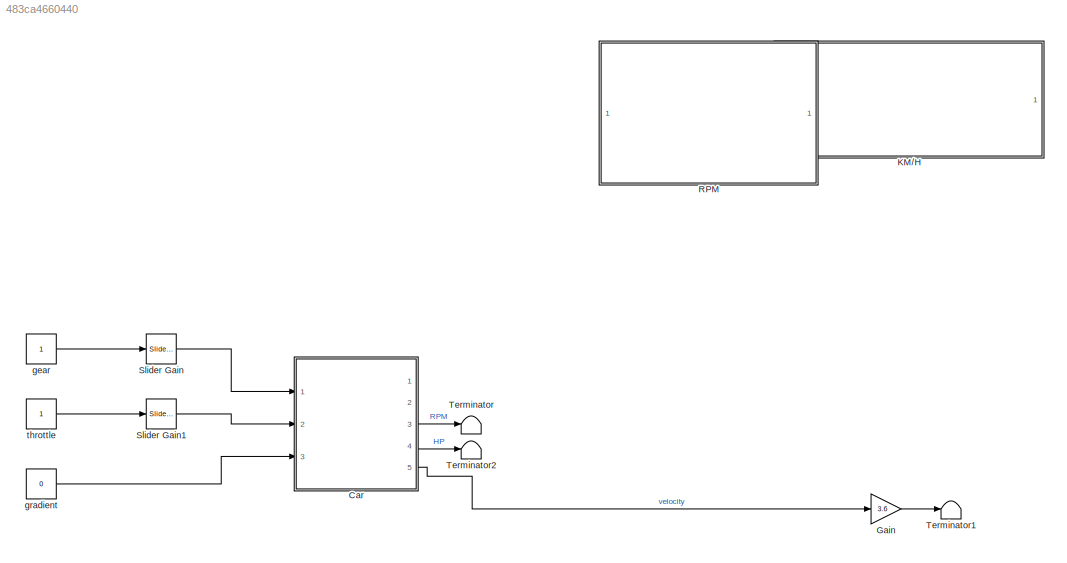
MODEL slx_483ca4660440
KIND model
CONFIG AbsTol = auto
CONFIG EnableMultiTasking = on
CONFIG FixedStep = 0.01
CONFIG MaxStep = auto
CONFIG MinStep = auto
CONFIG RelTol = 1e-3
CONFIG SampleTimeConstraint = Unconstrained
CONFIG Solver = ode3
CONFIG SolverName = ode3
CONFIG StartTime = 0.0
CONFIG StopTime = inf
WORKSPACE source: MAT-file member
WORKSPACE MCOS: class17 (value not decoded)
WORKSPACE MCOS: class17 (value not decoded)
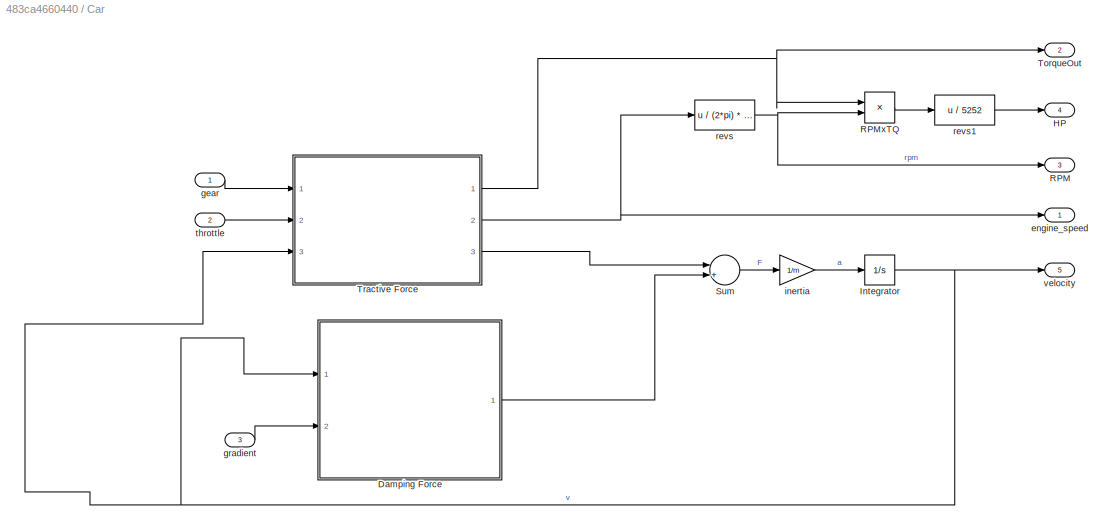
BLOCK [SubSystem] Car
  Ports = [3, 5]
  RequestExecContextInheritance = off
  Variant = off
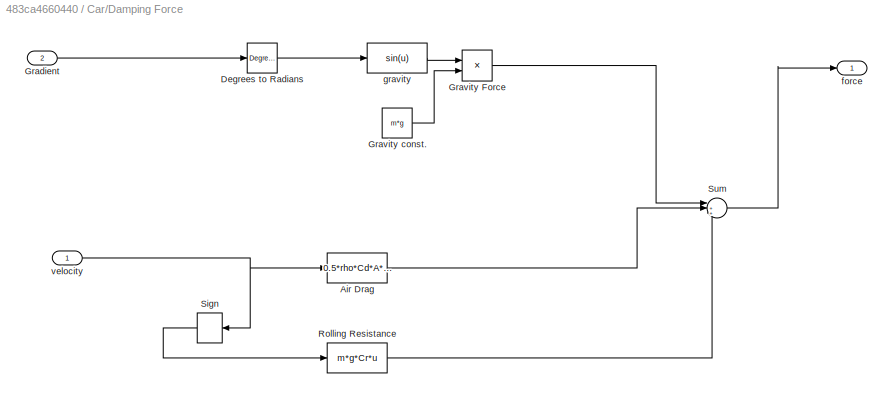
BLOCK [SubSystem] Car/Damping Force
  Ports = [2, 1]
  RequestExecContextInheritance = off
  Variant = off
BLOCK [Fcn] Car/Damping Force/Air Drag
  Expr = 0.5*rho*Cd*A*(u^2)
BLOCK [Reference] Car/Damping Force/Degrees to Radians  REF=simulink_extras/Transformations/Degrees to
Radians
  Ports = [1, 1]
  SourceBlock = simulink_extras/Transformations/Degrees to\nRadians
  SourceProductBaseCode = SL
  SourceProductName = Simulink
  SourceType = DegreesToRadians
BLOCK [Inport] Car/Damping Force/Gradient
  IconDisplay = Port number
  Port = 2
BLOCK [Product] Car/Damping Force/Gravity Force
  InputSameDT = off
  OutDataTypeStr = Inherit: Inherit via internal rule
  Ports = [2, 1]
  RndMeth = Floor
  SaturateOnIntegerOverflow = off
BLOCK [Constant] Car/Damping Force/Gravity const.
  Value = m*g
BLOCK [Fcn] Car/Damping Force/Rolling Resistance
  Expr = m*g*Cr*u
BLOCK [Signum] Car/Damping Force/Sign
BLOCK [Sum] Car/Damping Force/Sum
  IconShape = round
  InputSameDT = off
  Inputs = |+++
  OutDataTypeStr = Inherit: Inherit via internal rule
  Ports = [3, 1]
  SaturateOnIntegerOverflow = off
BLOCK [Outport] Car/Damping Force/force
  IconDisplay = Port number
BLOCK [Fcn] Car/Damping Force/gravity
  Expr = sin(u)
BLOCK [Inport] Car/Damping Force/velocity
  IconDisplay = Port number
BLOCK [Outport] Car/HP
  IconDisplay = Port number
  Port = 4
BLOCK [Integrator] Car/Integrator
  Ports = [1, 1]
BLOCK [Outport] Car/RPM
  IconDisplay = Port number
  Port = 3
BLOCK [Product] Car/RPMxTQ
  InputSameDT = off
  OutDataTypeStr = Inherit: Inherit via internal rule
  Ports = [2, 1]
  RndMeth = Floor
  SaturateOnIntegerOverflow = off
BLOCK [Sum] Car/Sum
  IconShape = round
  InputSameDT = off
  Inputs = |+-
  OutDataTypeStr = Inherit: Inherit via internal rule
  Ports = [2, 1]
  SaturateOnIntegerOverflow = off
BLOCK [Outport] Car/TorqueOut
  IconDisplay = Port number
  Port = 2
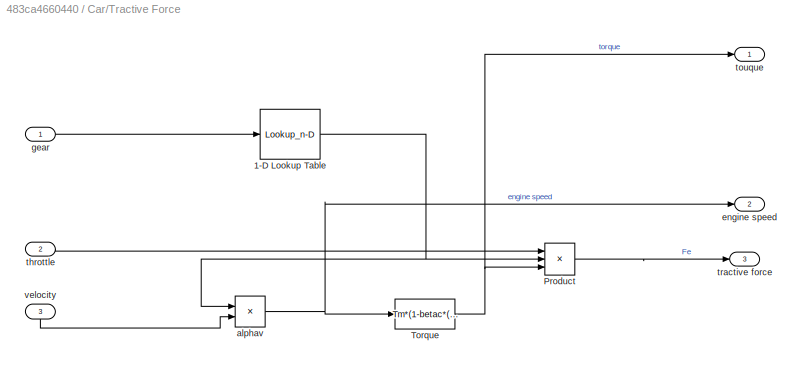
BLOCK [SubSystem] Car/Tractive Force
  Ports = [3, 3]
  RequestExecContextInheritance = off
  Variant = off
BLOCK [Lookup_n-D] Car/Tractive Force/1-D Lookup Table
  BreakpointsForDimension1 = int16([1,2,3,4,5]);
  InternalRulePriority = Speed
  NumberOfTableDimensions = 1
  Ports = [1, 1]
  RndMeth = Simplest
  Table = int16([40,25,16,12,10]);
BLOCK [Product] Car/Tractive Force/Product
  InputSameDT = off
  Inputs = 3
  OutDataTypeStr = Inherit: Inherit via internal rule
  Ports = [3, 1]
  RndMeth = Floor
  SaturateOnIntegerOverflow = off
BLOCK [Fcn] Car/Tractive Force/Torque
  Expr = Tm*(1-betac*((u/omegam)-1)^2)
BLOCK [Product] Car/Tractive Force/alphav
  InputSameDT = off
  OutDataTypeStr = Inherit: Inherit via internal rule
  Ports = [2, 1]
  RndMeth = Floor
  SaturateOnIntegerOverflow = off
BLOCK [Outport] Car/Tractive Force/engine speed
  IconDisplay = Port number
  Port = 2
BLOCK [Inport] Car/Tractive Force/gear
  IconDisplay = Port number
BLOCK [Inport] Car/Tractive Force/throttle
  IconDisplay = Port number
  Port = 2
BLOCK [Outport] Car/Tractive Force/touque
  IconDisplay = Port number
BLOCK [Outport] Car/Tractive Force/tractive force
  IconDisplay = Port number
  Port = 3
BLOCK [Inport] Car/Tractive Force/velocity
  IconDisplay = Port number
  Port = 3
BLOCK [Outport] Car/engine_speed
  IconDisplay = Port number
BLOCK [Inport] Car/gear
  IconDisplay = Port number
BLOCK [Inport] Car/gradient
  IconDisplay = Port number
  Port = 3
BLOCK [Gain] Car/inertia
  Gain = 1/m
  OutDataTypeStr = Inherit: Inherit via internal rule
  ParamDataTypeStr = Inherit: Inherit via internal rule
  SaturateOnIntegerOverflow = off
BLOCK [Fcn] Car/revs
  Expr = u / (2*pi) * 60
BLOCK [Fcn] Car/revs1
  Expr = u / 5252
BLOCK [Inport] Car/throttle
  IconDisplay = Port number
  OutMax = 1
  OutMin = 0
  Port = 2
BLOCK [Outport] Car/velocity
  IconDisplay = Port number
  Port = 5
BLOCK [Gain] Gain
  Gain = 3.6
  OutDataTypeStr = Inherit: Inherit via internal rule
  ParamDataTypeStr = Inherit: Inherit via internal rule
  SaturateOnIntegerOverflow = off
BLOCK [SubSystem] KM//H
  DialogController = hmiCreateDDGDialog
  IsWebBlock = on
  MaskHideContents = on
  Ports = []
  RequestExecContextInheritance = off
  Variant = off
BLOCK [SubSystem] RPM
  DialogController = hmiCreateDDGDialog
  IsWebBlock = on
  MaskHideContents = on
  Ports = []
  RequestExecContextInheritance = off
  Variant = off
BLOCK [Reference] Slider Gain  REF=simulink/Math
Operations/Slider
Gain
  Ports = [1, 1]
  SourceBlock = simulink/Math\nOperations/Slider\nGain
  SourceProductBaseCode = SL
  SourceProductName = Simulink
  SourceType = Slider Gain
BLOCK [Reference] Slider Gain1  REF=simulink/Math
Operations/Slider
Gain
  Ports = [1, 1]
  SourceBlock = simulink/Math\nOperations/Slider\nGain
  SourceProductBaseCode = SL
  SourceProductName = Simulink
  SourceType = Slider Gain
BLOCK [Terminator] Terminator
BLOCK [Terminator] Terminator1
BLOCK [Terminator] Terminator2
BLOCK [Constant] gear
BLOCK [Constant] gradient
  Value = 0
BLOCK [Constant] throttle
LINE Car/Damping Force/Air Drag:1 -> Car/Damping Force/Sum:2
LINE Car/Damping Force/Degrees to Radians:1 -> Car/Damping Force/gravity:1
LINE Car/Damping Force/Gradient:1 -> Car/Damping Force/Degrees to Radians:1
LINE Car/Damping Force/Gravity Force:1 -> Car/Damping Force/Sum:1
LINE Car/Damping Force/Gravity const.:1 -> Car/Damping Force/Gravity Force:2
LINE Car/Damping Force/Rolling Resistance:1 -> Car/Damping Force/Sum:3
LINE Car/Damping Force/Sign:1 -> Car/Damping Force/Rolling Resistance:1
LINE Car/Damping Force/Sum:1 -> Car/Damping Force/force:1
LINE Car/Damping Force/gravity:1 -> Car/Damping Force/Gravity Force:1
NET Car/Damping Force/velocity:1 -> Car/Damping Force/Air Drag:1, Car/Damping Force/Sign:1
LINE Car/Damping Force:1 -> Car/Sum:2
NET Car/Integrator:1 -> Car/Damping Force:1, Car/Tractive Force:3, Car/velocity:1
LINE Car/RPMxTQ:1 -> Car/revs1:1
LINE Car/Sum:1 -> Car/inertia:1
NET Car/Tractive Force/1-D Lookup Table:1 -> Car/Tractive Force/Product:2, Car/Tractive Force/alphav:1
LINE Car/Tractive Force/Product:1 -> Car/Tractive Force/tractive force:1
NET Car/Tractive Force/Torque:1 -> Car/Tractive Force/Product:3, Car/Tractive Force/touque:1
NET Car/Tractive Force/alphav:1 -> Car/Tractive Force/Torque:1, Car/Tractive Force/engine speed:1
LINE Car/Tractive Force/gear:1 -> Car/Tractive Force/1-D Lookup Table:1
LINE Car/Tractive Force/throttle:1 -> Car/Tractive Force/Product:1
LINE Car/Tractive Force/velocity:1 -> Car/Tractive Force/alphav:2
NET Car/Tractive Force:1 -> Car/RPMxTQ:1, Car/TorqueOut:1
NET Car/Tractive Force:2 -> Car/engine_speed:1, Car/revs:1
LINE Car/Tractive Force:3 -> Car/Sum:1
LINE Car/gear:1 -> Car/Tractive Force:1
LINE Car/gradient:1 -> Car/Damping Force:2
LINE Car/inertia:1 -> Car/Integrator:1
LINE Car/revs1:1 -> Car/HP:1
NET Car/revs:1 -> Car/RPM:1, Car/RPMxTQ:2
LINE Car/throttle:1 -> Car/Tractive Force:2
LINE Car:3 -> Terminator:1
LINE Car:4 -> Terminator2:1
LINE Car:5 -> Gain:1
LINE Gain:1 -> Terminator1:1
LINE Slider Gain1:1 -> Car:2
LINE Slider Gain:1 -> Car:1
LINE gear:1 -> Slider Gain:1
LINE gradient:1 -> Car:3
LINE throttle:1 -> Slider Gain1:1
note: NET lines group one-source signal fan-out (src -> all destinations, sorted); 1:1 wires keep LINE
